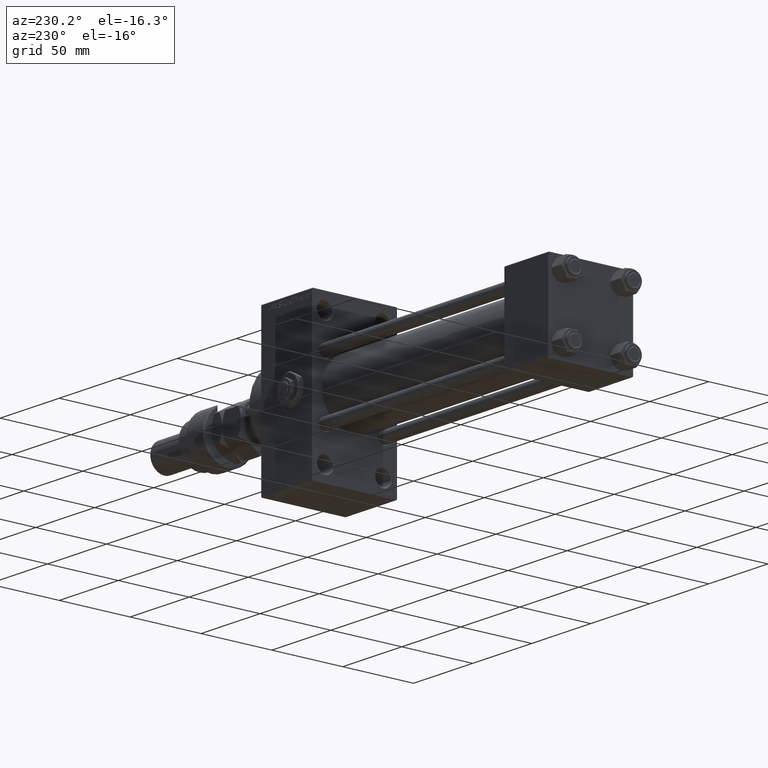
[diagram: clean part render]
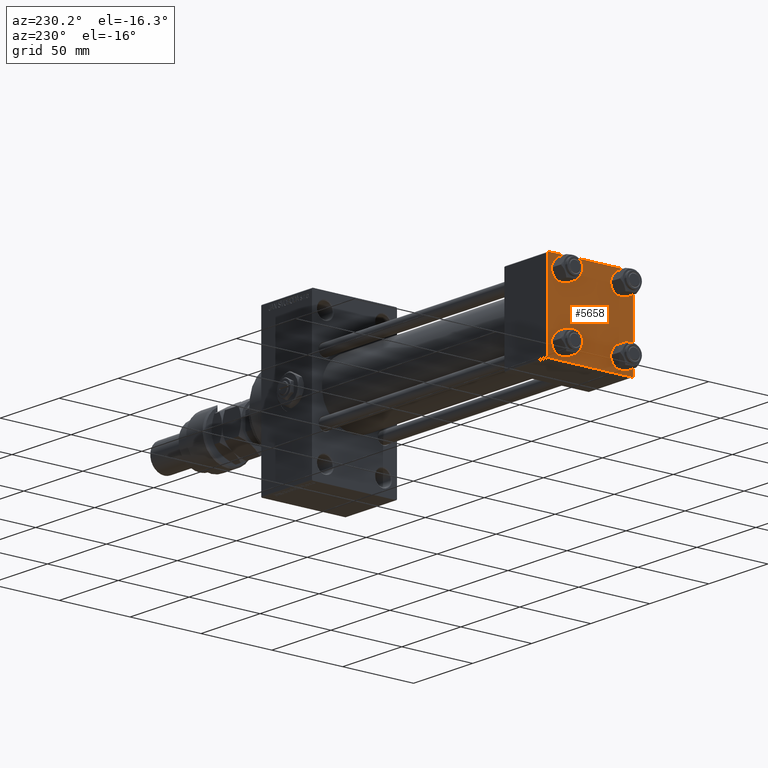
[diagram: same view with one face highlighted and labeled with its STEP entity id]
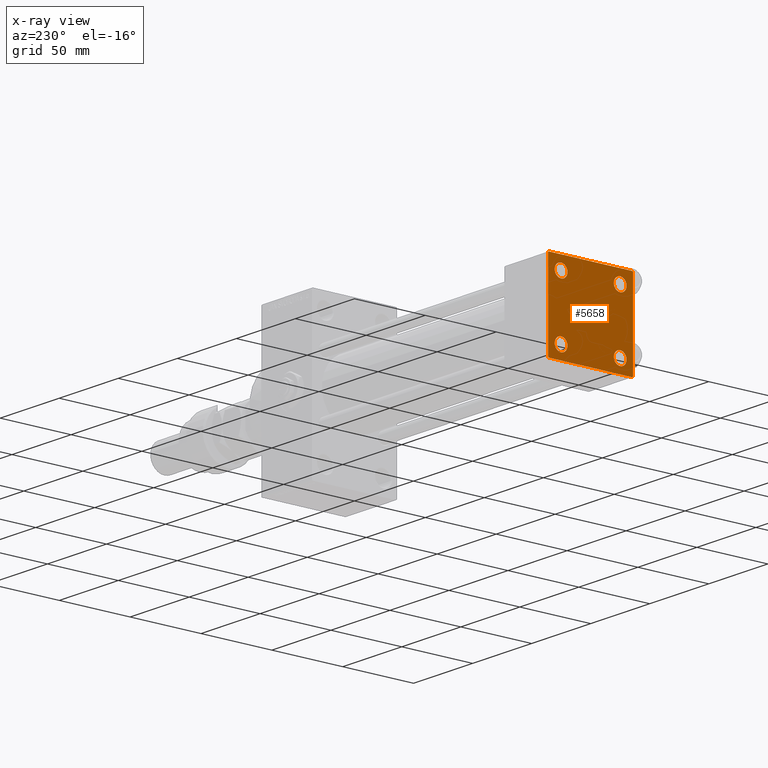
[diagram: x-ray of the same camera — body ghosted, the highlighted face saturated]
A machine part, auxiliary view. The second image highlights one B-rep face of the part: STEP entity #5658.
The next image is the same camera in x-ray: the body ghosted, the highlighted face saturated — about 0% of this face is hidden behind the body in this view.
In plain terms, the highlighted planar face has unit normal (-1, 0, 0).
Its self-contained STEP definition (entity closure, byte-faithful):
#55 = EDGE_CURVE ( 'NONE', #26103, #18748, #37977, .T. ) ;
#774 = CARTESIAN_POINT ( 'NONE',  ( 0.000000000000000000, 20.84999999999999787, -16.34999999999998366 ) ) ;
#1096 = AXIS2_PLACEMENT_3D ( 'NONE', #12519, #48498, #12781 ) ;
#1193 = VERTEX_POINT ( 'NONE', #13761 ) ;
#1278 = CARTESIAN_POINT ( 'NONE',  ( 0.000000000000000000, -20.84999999999999076, 20.85000000000000497 ) ) ;
#1737 = CARTESIAN_POINT ( 'NONE',  ( 0.000000000000000000, 29.74999999999957723, -29.75000000000040501 ) ) ;
#1829 = DIRECTION ( 'NONE',  ( 1.000000000000000000, -0.000000000000000000, 0.000000000000000000 ) ) ;
#2013 = VECTOR ( 'NONE', #36629, 1000.000000000000000 ) ;
#2886 = DIRECTION ( 'NONE',  ( -0.000000000000000000, 0.7071067811865474617, 0.7071067811865474617 ) ) ;
#3473 = CARTESIAN_POINT ( 'NONE',  ( 0.000000000000000000, -30.00000000000000000, 29.49999999999999289 ) ) ;
#3598 = CIRCLE ( 'NONE', #1096, 4.500000000000017764 ) ;
#3789 = ORIENTED_EDGE ( 'NONE', *, *, #44893, .T. ) ;
#4161 = VERTEX_POINT ( 'NONE', #26440 ) ;
#4510 = CARTESIAN_POINT ( 'NONE',  ( 0.000000000000000000, 0.000000000000000000, 0.000000000000000000 ) ) ;
#4769 = VECTOR ( 'NONE', #22345, 1000.000000000000114 ) ;
#5149 = DIRECTION ( 'NONE',  ( 0.000000000000000000, 0.000000000000000000, 1.000000000000000000 ) ) ;
#5650 = LINE ( 'NONE', #1737, #6077 ) ;
#5658 = ADVANCED_FACE ( 'NONE', ( #20409, #24348, #7915, #15988, #47798 ), #40243, .T. ) ;
#6077 = VECTOR ( 'NONE', #14509, 999.9999999999998863 ) ;
#6108 = VECTOR ( 'NONE', #33954, 1000.000000000000000 ) ;
#6113 = AXIS2_PLACEMENT_3D ( 'NONE', #24728, #40627, #5149 ) ;
#6441 = ORIENTED_EDGE ( 'NONE', *, *, #42441, .T. ) ;
#6563 = AXIS2_PLACEMENT_3D ( 'NONE', #43330, #35263, #34758 ) ;
#7915 = FACE_BOUND ( 'NONE', #37899, .T. ) ;
#8239 = DIRECTION ( 'NONE',  ( 0.000000000000000000, 0.7071067811865474617, -0.7071067811865474617 ) ) ;
#8597 = CARTESIAN_POINT ( 'NONE',  ( 0.000000000000000000, -20.84999999999999076, -25.35000000000002274 ) ) ;
#9936 = LINE ( 'NONE', #18022, #6108 ) ;
#10002 = EDGE_CURVE ( 'NONE', #19509, #24638, #29900, .T. ) ;
#10049 = VERTEX_POINT ( 'NONE', #27546 ) ;
#10598 = LINE ( 'NONE', #20149, #48560 ) ;
#10902 = CARTESIAN_POINT ( 'NONE',  ( 0.000000000000000000, -20.84999999999999076, 25.35000000000002274 ) ) ;
#11470 = CIRCLE ( 'NONE', #31499, 4.500000000000017764 ) ;
#11781 = ORIENTED_EDGE ( 'NONE', *, *, #41393, .T. ) ;
#11968 = VERTEX_POINT ( 'NONE', #8597 ) ;
#12089 = VERTEX_POINT ( 'NONE', #29983 ) ;
#12342 = CARTESIAN_POINT ( 'NONE',  ( 0.000000000000000000, 20.84999999999999787, -20.85000000000000142 ) ) ;
#12519 = CARTESIAN_POINT ( 'NONE',  ( 0.000000000000000000, 20.84999999999999787, 20.85000000000000142 ) ) ;
#12781 = DIRECTION ( 'NONE',  ( 0.000000000000000000, 0.000000000000000000, 1.000000000000000000 ) ) ;
#13424 = CARTESIAN_POINT ( 'NONE',  ( 0.000000000000000000, -20.84999999999999076, -20.85000000000000497 ) ) ;
#13442 = DIRECTION ( 'NONE',  ( 0.000000000000000000, 0.000000000000000000, -1.000000000000000000 ) ) ;
#13761 = CARTESIAN_POINT ( 'NONE',  ( 0.000000000000000000, 29.99999999999999289, -29.50000000000000000 ) ) ;
#14509 = DIRECTION ( 'NONE',  ( -0.000000000000000000, -0.7071067811865574537, -0.7071067811865376918 ) ) ;
#15053 = ORIENTED_EDGE ( 'NONE', *, *, #25812, .T. ) ;
#15238 = VERTEX_POINT ( 'NONE', #31036 ) ;
#15664 = AXIS2_PLACEMENT_3D ( 'NONE', #4510, #28536, #19647 ) ;
#15988 = FACE_BOUND ( 'NONE', #31869, .T. ) ;
#15993 = DIRECTION ( 'NONE',  ( 0.000000000000000000, 0.000000000000000000, 1.000000000000000000 ) ) ;
#16105 = CARTESIAN_POINT ( 'NONE',  ( 0.000000000000000000, -20.84999999999999076, 16.34999999999998721 ) ) ;
#16346 = VERTEX_POINT ( 'NONE', #28633 ) ;
#16876 = AXIS2_PLACEMENT_3D ( 'NONE', #12342, #24352, #15993 ) ;
#17122 = VERTEX_POINT ( 'NONE', #774 ) ;
#17186 = DIRECTION ( 'NONE',  ( 1.000000000000000000, -0.000000000000000000, 0.000000000000000000 ) ) ;
#17361 = VECTOR ( 'NONE', #13442, 1000.000000000000000 ) ;
#17766 = EDGE_CURVE ( 'NONE', #16346, #17122, #43461, .T. ) ;
#18017 = DIRECTION ( 'NONE',  ( 1.000000000000000000, -0.000000000000000000, 0.000000000000000000 ) ) ;
#18022 = CARTESIAN_POINT ( 'NONE',  ( 0.000000000000000000, 29.99999999999999289, 30.00000000000000000 ) ) ;
#18424 = ORIENTED_EDGE ( 'NONE', *, *, #29973, .F. ) ;
#18748 = VERTEX_POINT ( 'NONE', #10902 ) ;
#18770 = VERTEX_POINT ( 'NONE', #51285 ) ;
#19509 = VERTEX_POINT ( 'NONE', #3473 ) ;
#19647 = DIRECTION ( 'NONE',  ( -0.000000000000000000, 0.000000000000000000, 1.000000000000000000 ) ) ;
#19799 = ORIENTED_EDGE ( 'NONE', *, *, #29299, .T. ) ;
#20149 = CARTESIAN_POINT ( 'NONE',  ( 0.000000000000000000, 29.99999999999999289, -30.00000000000000000 ) ) ;
#20409 = FACE_BOUND ( 'NONE', #32804, .T. ) ;
#21807 = EDGE_CURVE ( 'NONE', #15238, #18770, #40825, .T. ) ;
#22153 = CARTESIAN_POINT ( 'NONE',  ( 0.000000000000000000, -29.50000000000000000, -30.00000000000000711 ) ) ;
#22158 = EDGE_CURVE ( 'NONE', #17122, #16346, #29377, .T. ) ;
#22274 = VECTOR ( 'NONE', #2886, 1000.000000000000114 ) ;
#22345 = DIRECTION ( 'NONE',  ( 0.000000000000000000, -0.7071067811865474617, 0.7071067811865474617 ) ) ;
#22690 = VECTOR ( 'NONE', #8239, 1000.000000000000114 ) ;
#23251 = CIRCLE ( 'NONE', #6563, 4.500000000000017764 ) ;
#24348 = FACE_BOUND ( 'NONE', #50211, .T. ) ;
#24352 = DIRECTION ( 'NONE',  ( 1.000000000000000000, -0.000000000000000000, 0.000000000000000000 ) ) ;
#24638 = VERTEX_POINT ( 'NONE', #31847 ) ;
#24728 = CARTESIAN_POINT ( 'NONE',  ( 0.000000000000000000, -20.84999999999999076, -20.85000000000000497 ) ) ;
#25812 = EDGE_CURVE ( 'NONE', #43590, #10049, #3598, .T. ) ;
#26103 = VERTEX_POINT ( 'NONE', #16105 ) ;
#26270 = CARTESIAN_POINT ( 'NONE',  ( 0.000000000000000000, -29.75000000000001066, -29.75000000000001066 ) ) ;
#26300 = EDGE_CURVE ( 'NONE', #1193, #4161, #5650, .T. ) ;
#26338 = EDGE_CURVE ( 'NONE', #4161, #31763, #10598, .T. ) ;
#26440 = CARTESIAN_POINT ( 'NONE',  ( 0.000000000000000000, 29.49999999999997868, -30.00000000000000000 ) ) ;
#27113 = EDGE_CURVE ( 'NONE', #11968, #47407, #41936, .T. ) ;
#27546 = CARTESIAN_POINT ( 'NONE',  ( 0.000000000000000000, 20.84999999999999787, 16.34999999999998366 ) ) ;
#27576 = EDGE_CURVE ( 'NONE', #18770, #1193, #44440, .T. ) ;
#28536 = DIRECTION ( 'NONE',  ( -1.000000000000000000, 0.000000000000000000, -0.000000000000000000 ) ) ;
#28633 = CARTESIAN_POINT ( 'NONE',  ( 0.000000000000000000, 20.84999999999999787, -25.35000000000001918 ) ) ;
#28806 = AXIS2_PLACEMENT_3D ( 'NONE', #41210, #1829, #30553 ) ;
#29299 = EDGE_CURVE ( 'NONE', #18748, #26103, #46087, .T. ) ;
#29377 = CIRCLE ( 'NONE', #16876, 4.500000000000017764 ) ;
#29900 = LINE ( 'NONE', #45767, #17361 ) ;
#29973 = EDGE_CURVE ( 'NONE', #15238, #12089, #9936, .T. ) ;
#29983 = CARTESIAN_POINT ( 'NONE',  ( 0.000000000000000000, -29.49999999999998579, 29.99999999999999289 ) ) ;
#30458 = LINE ( 'NONE', #26270, #4769 ) ;
#30553 = DIRECTION ( 'NONE',  ( 0.000000000000000000, 0.000000000000000000, 1.000000000000000000 ) ) ;
#31036 = CARTESIAN_POINT ( 'NONE',  ( 0.000000000000000000, 29.49999999999999289, 30.00000000000000000 ) ) ;
#31499 = AXIS2_PLACEMENT_3D ( 'NONE', #13424, #36664, #40313 ) ;
#31636 = ORIENTED_EDGE ( 'NONE', *, *, #38325, .T. ) ;
#31701 = CARTESIAN_POINT ( 'NONE',  ( 0.000000000000000000, 20.84999999999999787, 25.35000000000001918 ) ) ;
#31763 = VERTEX_POINT ( 'NONE', #22153 ) ;
#31847 = CARTESIAN_POINT ( 'NONE',  ( 0.000000000000000000, -30.00000000000000000, -29.50000000000001776 ) ) ;
#31869 = EDGE_LOOP ( 'NONE', ( #15053, #3789 ) ) ;
#31983 = AXIS2_PLACEMENT_3D ( 'NONE', #1278, #17186, #41694 ) ;
#32804 = EDGE_LOOP ( 'NONE', ( #19799, #44268 ) ) ;
#33020 = CARTESIAN_POINT ( 'NONE',  ( 0.000000000000000000, 29.74999999999999645, 29.74999999999999645 ) ) ;
#33770 = ORIENTED_EDGE ( 'NONE', *, *, #21807, .T. ) ;
#33954 = DIRECTION ( 'NONE',  ( 0.000000000000000000, -1.000000000000000000, -1.156482317317871725E-16 ) ) ;
#34195 = LINE ( 'NONE', #38624, #22274 ) ;
#34758 = DIRECTION ( 'NONE',  ( 0.000000000000000000, 0.000000000000000000, 1.000000000000000000 ) ) ;
#34789 = ORIENTED_EDGE ( 'NONE', *, *, #26338, .T. ) ;
#35263 = DIRECTION ( 'NONE',  ( 1.000000000000000000, -0.000000000000000000, 0.000000000000000000 ) ) ;
#36629 = DIRECTION ( 'NONE',  ( 0.000000000000000000, 0.000000000000000000, -1.000000000000000000 ) ) ;
#36664 = DIRECTION ( 'NONE',  ( 1.000000000000000000, -0.000000000000000000, 0.000000000000000000 ) ) ;
#37180 = ORIENTED_EDGE ( 'NONE', *, *, #27113, .T. ) ;
#37899 = EDGE_LOOP ( 'NONE', ( #51098, #41698 ) ) ;
#37977 = CIRCLE ( 'NONE', #28806, 4.500000000000017764 ) ;
#38206 = ORIENTED_EDGE ( 'NONE', *, *, #10002, .F. ) ;
#38325 = EDGE_CURVE ( 'NONE', #19509, #12089, #34195, .T. ) ;
#38624 = CARTESIAN_POINT ( 'NONE',  ( -0.000000000000000000, -29.74999999999999645, 29.74999999999999645 ) ) ;
#38872 = ORIENTED_EDGE ( 'NONE', *, *, #27576, .T. ) ;
#39304 = AXIS2_PLACEMENT_3D ( 'NONE', #45140, #18017, #49060 ) ;
#40243 = PLANE ( 'NONE',  #15664 ) ;
#40313 = DIRECTION ( 'NONE',  ( 0.000000000000000000, 0.000000000000000000, 1.000000000000000000 ) ) ;
#40529 = CARTESIAN_POINT ( 'NONE',  ( 0.000000000000000000, -20.84999999999999076, -16.34999999999998721 ) ) ;
#40627 = DIRECTION ( 'NONE',  ( 1.000000000000000000, -0.000000000000000000, 0.000000000000000000 ) ) ;
#40787 = EDGE_LOOP ( 'NONE', ( #38872, #42262, #34789, #11781, #38206, #31636, #18424, #33770 ) ) ;
#40825 = LINE ( 'NONE', #33020, #22690 ) ;
#41210 = CARTESIAN_POINT ( 'NONE',  ( 0.000000000000000000, -20.84999999999999076, 20.85000000000000497 ) ) ;
#41393 = EDGE_CURVE ( 'NONE', #31763, #24638, #30458, .T. ) ;
#41694 = DIRECTION ( 'NONE',  ( 0.000000000000000000, 0.000000000000000000, 1.000000000000000000 ) ) ;
#41698 = ORIENTED_EDGE ( 'NONE', *, *, #17766, .T. ) ;
#41936 = CIRCLE ( 'NONE', #6113, 4.500000000000017764 ) ;
#42262 = ORIENTED_EDGE ( 'NONE', *, *, #26300, .T. ) ;
#42426 = DIRECTION ( 'NONE',  ( 0.000000000000000000, -1.000000000000000000, -1.156482317317871725E-16 ) ) ;
#42441 = EDGE_CURVE ( 'NONE', #47407, #11968, #11470, .T. ) ;
#43330 = CARTESIAN_POINT ( 'NONE',  ( 0.000000000000000000, 20.84999999999999787, 20.85000000000000142 ) ) ;
#43461 = CIRCLE ( 'NONE', #39304, 4.500000000000017764 ) ;
#43590 = VERTEX_POINT ( 'NONE', #31701 ) ;
#44268 = ORIENTED_EDGE ( 'NONE', *, *, #55, .T. ) ;
#44440 = LINE ( 'NONE', #44695, #2013 ) ;
#44695 = CARTESIAN_POINT ( 'NONE',  ( 0.000000000000000000, 29.99999999999999289, 30.00000000000000000 ) ) ;
#44893 = EDGE_CURVE ( 'NONE', #10049, #43590, #23251, .T. ) ;
#45140 = CARTESIAN_POINT ( 'NONE',  ( 0.000000000000000000, 20.84999999999999787, -20.85000000000000142 ) ) ;
#45767 = CARTESIAN_POINT ( 'NONE',  ( 0.000000000000000000, -30.00000000000000000, 29.99999999999999289 ) ) ;
#46087 = CIRCLE ( 'NONE', #31983, 4.500000000000017764 ) ;
#47407 = VERTEX_POINT ( 'NONE', #40529 ) ;
#47798 = FACE_OUTER_BOUND ( 'NONE', #40787, .T. ) ;
#48498 = DIRECTION ( 'NONE',  ( 1.000000000000000000, -0.000000000000000000, 0.000000000000000000 ) ) ;
#48560 = VECTOR ( 'NONE', #42426, 1000.000000000000000 ) ;
#49060 = DIRECTION ( 'NONE',  ( 0.000000000000000000, 0.000000000000000000, 1.000000000000000000 ) ) ;
#50211 = EDGE_LOOP ( 'NONE', ( #6441, #37180 ) ) ;
#51098 = ORIENTED_EDGE ( 'NONE', *, *, #22158, .T. ) ;
#51285 = CARTESIAN_POINT ( 'NONE',  ( 0.000000000000000000, 29.99999999999999289, 29.50000000000000000 ) ) ;